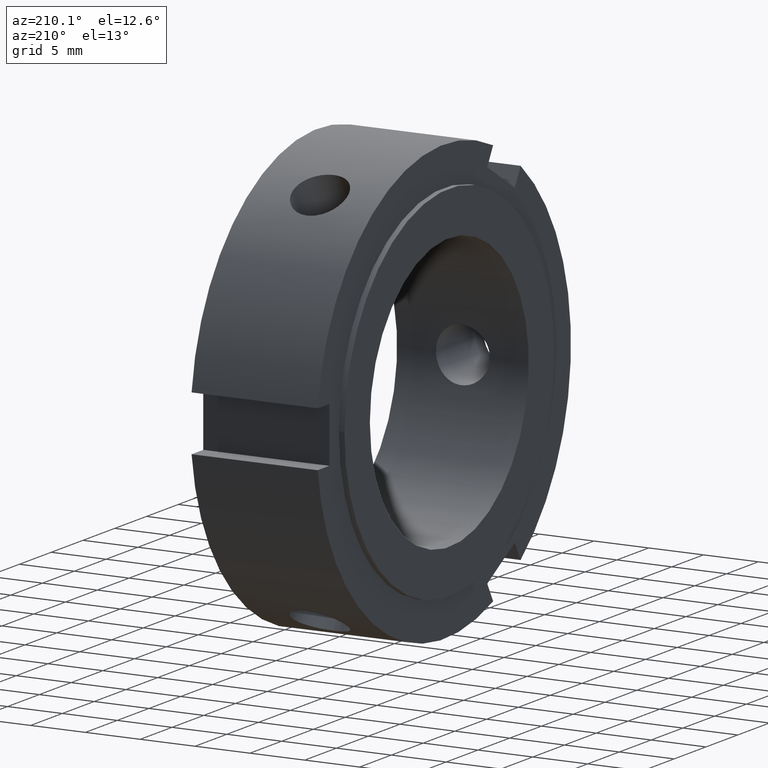
[diagram: clean part render]
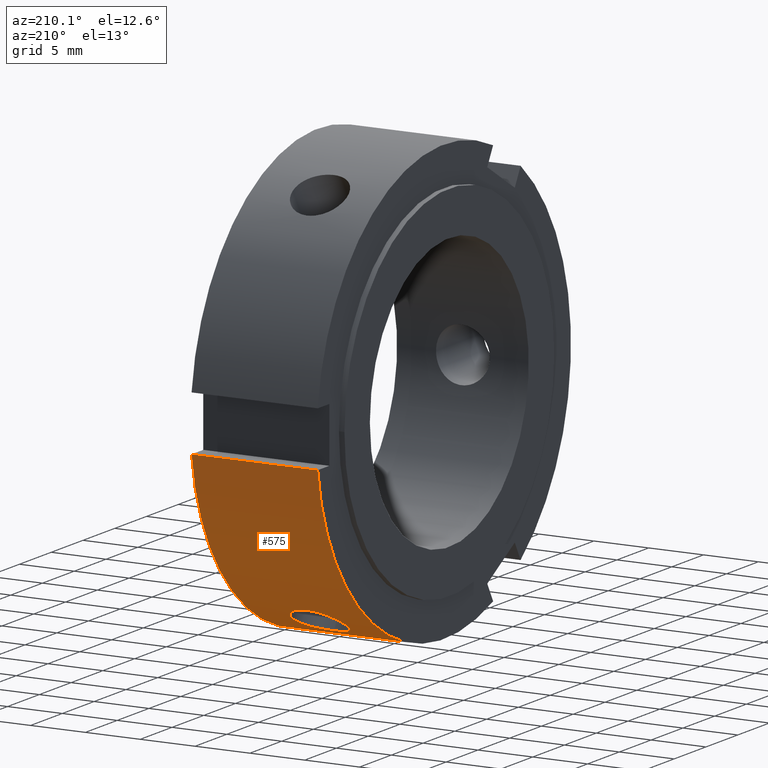
[diagram: same view with one face highlighted and labeled with its STEP entity id]
A machine part, auxiliary view. The second image highlights one B-rep face of the part: STEP entity #575.
In plain terms, the highlighted cylindrical surface (partial cylindrical patch) has radius 20 mm, axis along (1, 0, 0).
Its self-contained STEP definition (entity closure, byte-faithful):
#113=CARTESIAN_POINT('',(0.499999999999998,-7.756503907031130,-18.434658856084397));
#114=VERTEX_POINT('',#113);
#123=CARTESIAN_POINT('',(11.999999999999996,-7.756503907031130,-18.434658856084397));
#124=VERTEX_POINT('',#123);
#125=CARTESIAN_POINT('',(11.999999999999996,-7.756503907031130,-18.434658856084397));
#126=DIRECTION('',(-1.0,0.0,0.0));
#127=VECTOR('',#126,11.499999999999998);
#128=LINE('',#125,#127);
#129=EDGE_CURVE('',#124,#114,#128,.T.);
#365=CARTESIAN_POINT('',(5.999999999999995,7.795036178613821,-18.418398708196694));
#366=VERTEX_POINT('',#365);
#367=CARTESIAN_POINT('',(5.999999999999995,7.795036178613820,-18.418398708196690));
#368=CARTESIAN_POINT('',(6.309031728745286,7.795036178613820,-18.418398708196690));
#369=CARTESIAN_POINT('',(6.638446184143286,7.852558376867459,-18.394381817398784));
#370=CARTESIAN_POINT('',(7.244075995513192,8.084271127994620,-18.293728863487434));
#371=CARTESIAN_POINT('',(7.520318291020636,8.258236062594587,-18.216735945458606));
#372=CARTESIAN_POINT('',(7.956524048848388,8.655031096417270,-18.031593588574996));
#373=CARTESIAN_POINT('',(8.145679894707632,8.904383333350202,-17.910998259029235));
#374=CARTESIAN_POINT('',(8.396676480061615,9.443143564483332,-17.632893716010230));
#375=CARTESIAN_POINT('',(8.458499999999996,9.732372762313835,-17.475022733409350));
#376=CARTESIAN_POINT('',(8.458499999999994,10.267627237686154,-17.165993417968188));
#377=CARTESIAN_POINT('',(8.396676480061613,10.548962118054179,-16.994449076431216));
#378=CARTESIAN_POINT('',(8.145679894707630,11.059187832783062,-16.666921301230655));
#379=CARTESIAN_POINT('',(7.956524048848390,11.288302570213919,-16.511273594329133));
#380=CARTESIAN_POINT('',(7.520318291020636,11.647038071502994,-16.260210193384992));
#381=CARTESIAN_POINT('',(7.244075995513191,11.800698361727429,-16.148048599668140));
#382=CARTESIAN_POINT('',(6.638446184143286,12.003722752344183,-15.997705947766914));
#383=CARTESIAN_POINT('',(6.309031728745285,12.053283089021907,-15.959898708196686));
#384=CARTESIAN_POINT('',(5.690968271254704,12.053283089021907,-15.959898708196686));
#385=CARTESIAN_POINT('',(5.361553815856705,12.003722752344181,-15.997705947766912));
#386=CARTESIAN_POINT('',(4.755924004486799,11.800698361727429,-16.148048599668140));
#387=CARTESIAN_POINT('',(4.479681708979355,11.647038071502990,-16.260210193384992));
#388=CARTESIAN_POINT('',(4.043475951151601,11.288302570213919,-16.511273594329133));
#389=CARTESIAN_POINT('',(3.854320105292359,11.059187832783067,-16.666921301230655));
#390=CARTESIAN_POINT('',(3.603323519938374,10.548962118054185,-16.994449076431216));
#391=CARTESIAN_POINT('',(3.541499999999995,10.267627237686154,-17.165993417968188));
#392=CARTESIAN_POINT('',(3.541499999999993,9.732372762313835,-17.475022733409350));
#393=CARTESIAN_POINT('',(3.603323519938372,9.443143564483332,-17.632893716010230));
#394=CARTESIAN_POINT('',(3.854320105292355,8.904383333350200,-17.910998259029235));
#395=CARTESIAN_POINT('',(4.043475951151601,8.655031096417270,-18.031593588574996));
#396=CARTESIAN_POINT('',(4.479681708979353,8.258236062594587,-18.216735945458606));
#397=CARTESIAN_POINT('',(4.755924004486794,8.084271127994619,-18.293728863487434));
#398=CARTESIAN_POINT('',(5.361553815856702,7.852558376867457,-18.394381817398788));
#399=CARTESIAN_POINT('',(5.690968271254704,7.795036178613820,-18.418398708196690));
#400=CARTESIAN_POINT('',(5.999999999999995,7.795036178613820,-18.418398708196690));
#401=B_SPLINE_CURVE_WITH_KNOTS('',3,(#367,#368,#369,#370,#371,#372,#373,#374,#375,#376,#377,#378,#379,#380,#381,#382,#383,#384,#385,#386,#387,#388,#389,#390,#391,#392,#393,#394,#395,#396,#397,#398,#399,#400),.UNSPECIFIED.,.T.,.U.,(4,2,2,2,2,2,2,2,2,2,2,2,2,2,2,2,4),(0.0,0.092709518623587,0.185419037247175,0.278127831879523,0.370836626511871,0.463545421144219,0.556254215776567,0.648963734400154,0.741673253023742,0.834382771647329,0.927092290270916,1.019801084903264,1.112509879535612,1.205218674167960,1.297927468800308,1.390636987423896,1.483346506047483),.UNSPECIFIED.);
#402=EDGE_CURVE('',#366,#366,#401,.T.);
#456=CARTESIAN_POINT('',(11.999999999999996,19.843134832984429,-2.499999999999999));
#457=VERTEX_POINT('',#456);
#458=CARTESIAN_POINT('',(11.999999999999995,0.0,0.0));
#459=DIRECTION('',(1.0,0.0,0.0));
#460=DIRECTION('',(0.0,1.0,0.0));
#461=AXIS2_PLACEMENT_3D('',#458,#459,#460);
#462=CIRCLE('',#461,19.999999999999996);
#463=EDGE_CURVE('',#124,#457,#462,.T.);
#548=CARTESIAN_POINT('',(6.249999999999996,0.0,0.0));
#549=DIRECTION('',(1.0,0.0,0.0));
#550=DIRECTION('',(0.0,1.0,0.0));
#551=AXIS2_PLACEMENT_3D('',#548,#549,#550);
#552=CYLINDRICAL_SURFACE('',#551,19.999999999999996);
#553=ORIENTED_EDGE('',*,*,#129,.T.);
#554=CARTESIAN_POINT('',(0.499999999999998,19.843134832984429,-2.499999999999999));
#555=VERTEX_POINT('',#554);
#556=CARTESIAN_POINT('',(0.499999999999998,0.0,0.0));
#557=DIRECTION('',(1.0,0.0,0.0));
#558=DIRECTION('',(0.0,1.0,0.0));
#559=AXIS2_PLACEMENT_3D('',#556,#557,#558);
#560=CIRCLE('',#559,19.999999999999996);
#561=EDGE_CURVE('',#114,#555,#560,.T.);
#562=ORIENTED_EDGE('',*,*,#561,.T.);
#563=CARTESIAN_POINT('',(0.499999999999998,19.843134832984429,-2.499999999999999));
#564=DIRECTION('',(1.0,0.0,0.0));
#565=VECTOR('',#564,11.499999999999998);
#566=LINE('',#563,#565);
#567=EDGE_CURVE('',#555,#457,#566,.T.);
#568=ORIENTED_EDGE('',*,*,#567,.T.);
#569=ORIENTED_EDGE('',*,*,#463,.F.);
#570=EDGE_LOOP('',(#553,#562,#568,#569));
#571=FACE_OUTER_BOUND('',#570,.T.);
#572=ORIENTED_EDGE('',*,*,#402,.T.);
#573=EDGE_LOOP('',(#572));
#574=FACE_BOUND('',#573,.T.);
#575=ADVANCED_FACE('',(#571,#574),#552,.T.);